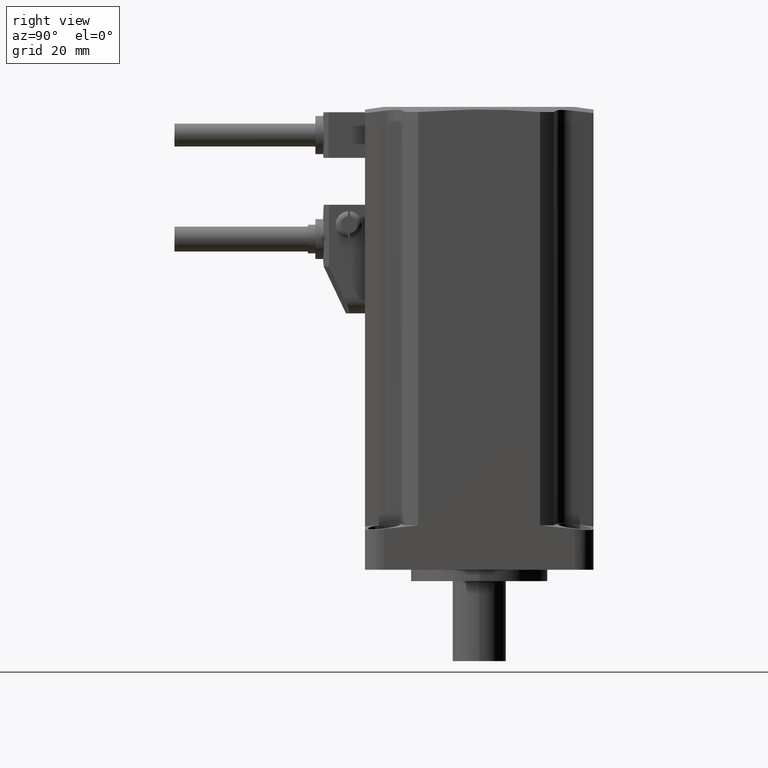
[diagram: clean part render]
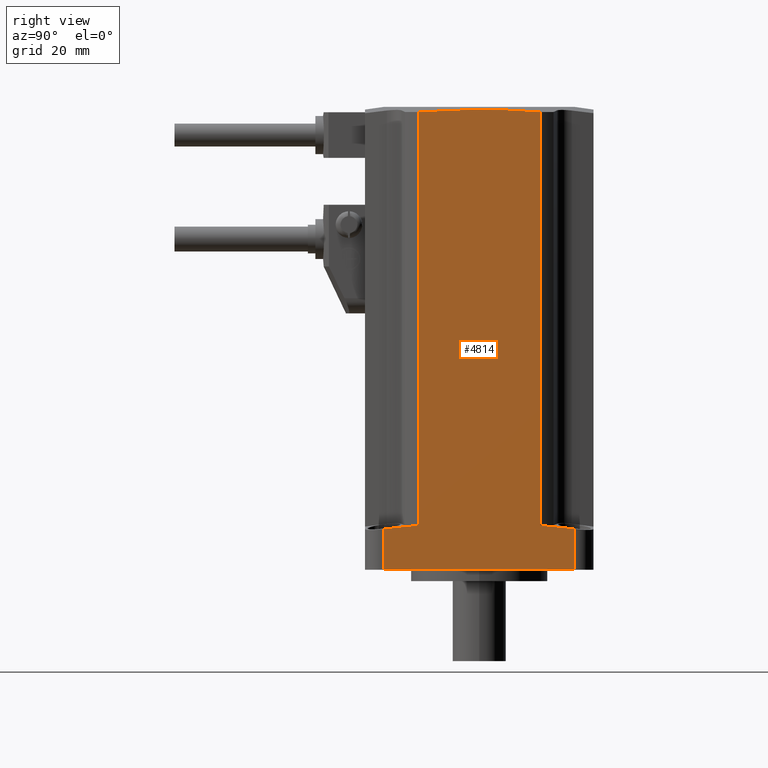
[diagram: same view with one face highlighted and labeled with its STEP entity id]
A machine part, right view. The second image highlights one B-rep face of the part: STEP entity #4814.
In plain terms, the highlighted planar face has unit normal (-1, 0, 0).
Its self-contained STEP definition (entity closure, byte-faithful):
#61 = CARTESIAN_POINT ( 'NONE',  ( 30.00000000000002132, -9.627715291671279374E-12, 121.0212689324768291 ) ) ;
#79 = DIRECTION ( 'NONE',  ( -0.0000000000000000000, 1.000000000000000000, 0.0000000000000000000 ) ) ;
#156 = EDGE_CURVE ( 'NONE', #2340, #4882, #4006, .T. ) ;
#379 = CARTESIAN_POINT ( 'NONE',  ( 30.00000000000000000, -16.00000000006212986, 120.1574641380377955 ) ) ;
#395 = ORIENTED_EDGE ( 'NONE', *, *, #156, .F. ) ;
#574 = CARTESIAN_POINT ( 'NONE',  ( 30.00000000000000000, 16.00000000000001421, 120.1574641380378097 ) ) ;
#653 = EDGE_CURVE ( 'NONE', #3724, #1781, #1730, .T. ) ;
#669 = DIRECTION ( 'NONE',  ( -0.0000000000000000000, -0.0000000000000000000, -1.000000000000000000 ) ) ;
#702 = CARTESIAN_POINT ( 'NONE',  ( 30.00000000000000000, -16.00000000006212986, 11.64060961089259649 ) ) ;
#896 = CARTESIAN_POINT ( 'NONE',  ( 30.00000000000000000, -16.00000000006212986, 11.64060961089259649 ) ) ;
#1005 = CARTESIAN_POINT ( 'NONE',  ( 30.00000000000000000, -25.00000000000000000, 12.99799999999999578 ) ) ;
#1075 = ORIENTED_EDGE ( 'NONE', *, *, #2011, .F. ) ;
#1101 = DIRECTION ( 'NONE',  ( 0.0000000000000000000, 0.0000000000000000000, -1.000000000000000000 ) ) ;
#1129 = LINE ( 'NONE', #1527, #3432 ) ;
#1224 = B_SPLINE_CURVE_WITH_KNOTS ( 'NONE', 3,
 ( #3399, #4156, #3066, #702 ),
 .UNSPECIFIED., .F., .F.,
 ( 4, 4 ),
 ( 0.0000000000000000000, 0.009048785526441073188 ),
 .UNSPECIFIED. ) ;
#1272 = VERTEX_POINT ( 'NONE', #574 ) ;
#1379 = LINE ( 'NONE', #2965, #2546 ) ;
#1478 = CARTESIAN_POINT ( 'NONE',  ( 30.00000000000000000, 22.00715869517009438, 11.08369676035045259 ) ) ;
#1503 = VECTOR ( 'NONE', #79, 1000.000000000000000 ) ;
#1527 = CARTESIAN_POINT ( 'NONE',  ( 30.00000000000000355, 25.00000000000000000, 13.00000000000000178 ) ) ;
#1606 = CARTESIAN_POINT ( 'NONE',  ( 29.99999999999998579, -25.00000000000002132, 10.70224960232975420 ) ) ;
#1662 = CARTESIAN_POINT ( 'NONE',  ( 30.00000000000000000, 16.00000000000000711, 12.99799999999999578 ) ) ;
#1663 = CARTESIAN_POINT ( 'NONE',  ( 30.00000000000000000, 25.00000000000000000, 0.0000000000000000000 ) ) ;
#1705 = CARTESIAN_POINT ( 'NONE',  ( 30.00000000000000000, -10.66666666668269770, 120.5904330735378522 ) ) ;
#1730 = LINE ( 'NONE', #3556, #1503 ) ;
#1781 = VERTEX_POINT ( 'NONE', #1663 ) ;
#1844 = CARTESIAN_POINT ( 'NONE',  ( 30.00000000000000000, -16.00000000012426327, 12.99799999999999578 ) ) ;
#1931 = CARTESIAN_POINT ( 'NONE',  ( 30.00000000000000000, -25.00000000000000000, 0.0000000000000000000 ) ) ;
#2011 = EDGE_CURVE ( 'NONE', #2112, #3719, #4690, .T. ) ;
#2112 = VERTEX_POINT ( 'NONE', #896 ) ;
#2155 = CARTESIAN_POINT ( 'NONE',  ( 29.99999999999999645, 16.00000000000214584, 11.64060961095267999 ) ) ;
#2213 = VECTOR ( 'NONE', #4667, 1000.000000000000000 ) ;
#2317 = EDGE_CURVE ( 'NONE', #1272, #2340, #1379, .T. ) ;
#2340 = VERTEX_POINT ( 'NONE', #2155 ) ;
#2472 = VERTEX_POINT ( 'NONE', #1606 ) ;
#2546 = VECTOR ( 'NONE', #669, 1000.000000000000000 ) ;
#2594 = LINE ( 'NONE', #1005, #2633 ) ;
#2633 = VECTOR ( 'NONE', #4090, 1000.000000000000000 ) ;
#2832 = EDGE_CURVE ( 'NONE', #3719, #1272, #4603, .T. ) ;
#2833 = ORIENTED_EDGE ( 'NONE', *, *, #2832, .F. ) ;
#2965 = CARTESIAN_POINT ( 'NONE',  ( 30.00000000000000000, 16.00000000000000711, 12.99799999999999578 ) ) ;
#3016 = EDGE_CURVE ( 'NONE', #3724, #2472, #2594, .T. ) ;
#3023 = CARTESIAN_POINT ( 'NONE',  ( 30.00000000000000000, 25.00000000000000355, 10.70224960240231304 ) ) ;
#3066 = CARTESIAN_POINT ( 'NONE',  ( 29.99999999999999289, -19.00715869524762169, 11.39648342980439466 ) ) ;
#3129 = ORIENTED_EDGE ( 'NONE', *, *, #2317, .F. ) ;
#3152 = CARTESIAN_POINT ( 'NONE',  ( 30.00000000000000711, 10.66666666666346330, 120.5904330735389181 ) ) ;
#3200 = DIRECTION ( 'NONE',  ( -1.000000000000000000, 0.0000000000000000000, 0.0000000000000000000 ) ) ;
#3202 = ORIENTED_EDGE ( 'NONE', *, *, #3016, .F. ) ;
#3399 = CARTESIAN_POINT ( 'NONE',  ( 29.99999999999998579, -25.00000000000002132, 10.70224960232975420 ) ) ;
#3432 = VECTOR ( 'NONE', #1101, 1000.000000000000000 ) ;
#3556 = CARTESIAN_POINT ( 'NONE',  ( 30.00000000000000000, 0.0000000000000000000, 0.0000000000000000000 ) ) ;
#3568 = ORIENTED_EDGE ( 'NONE', *, *, #3958, .F. ) ;
#3627 = CARTESIAN_POINT ( 'NONE',  ( 30.00000000000000000, -16.00000000006212986, 120.1574641380377955 ) ) ;
#3719 = VERTEX_POINT ( 'NONE', #379 ) ;
#3724 = VERTEX_POINT ( 'NONE', #1931 ) ;
#3731 = EDGE_CURVE ( 'NONE', #4882, #1781, #1129, .T. ) ;
#3769 = CARTESIAN_POINT ( 'NONE',  ( 29.99999999999999289, 19.00715869517011214, 11.39648342986740026 ) ) ;
#3772 = AXIS2_PLACEMENT_3D ( 'NONE', #1662, #3200, #4749 ) ;
#3837 = ORIENTED_EDGE ( 'NONE', *, *, #3731, .F. ) ;
#3864 = EDGE_LOOP ( 'NONE', ( #3568, #3202, #4558, #3837, #395, #3129, #2833, #1075 ) ) ;
#3958 = EDGE_CURVE ( 'NONE', #2472, #2112, #1224, .T. ) ;
#3981 = FACE_OUTER_BOUND ( 'NONE', #3864, .T. ) ;
#4006 = B_SPLINE_CURVE_WITH_KNOTS ( 'NONE', 3,
 ( #4948, #3769, #1478, #4149 ),
 .UNSPECIFIED., .F., .F.,
 ( 4, 4 ),
 ( 2.127798691319190618E-15, 0.009048785526553804193 ),
 .UNSPECIFIED. ) ;
#4090 = DIRECTION ( 'NONE',  ( 0.0000000000000000000, 0.0000000000000000000, 1.000000000000000000 ) ) ;
#4092 = PLANE ( 'NONE',  #3772 ) ;
#4149 = CARTESIAN_POINT ( 'NONE',  ( 30.00000000000000000, 25.00000000000000355, 10.70224960240231304 ) ) ;
#4156 = CARTESIAN_POINT ( 'NONE',  ( 29.99999999999998579, -22.00715869520782064, 11.08369676028191719 ) ) ;
#4558 = ORIENTED_EDGE ( 'NONE', *, *, #653, .T. ) ;
#4603 = B_SPLINE_CURVE_WITH_KNOTS ( 'NONE', 3,
 ( #3627, #1705, #61, #3152, #4698 ),
 .UNSPECIFIED., .F., .F.,
 ( 4, 1, 4 ),
 ( 0.0000000000000000000, 0.01600000000000961764, 0.03200000000001923528 ),
 .UNSPECIFIED. ) ;
#4667 = DIRECTION ( 'NONE',  ( 0.0000000000000000000, 0.0000000000000000000, 1.000000000000000000 ) ) ;
#4690 = LINE ( 'NONE', #1844, #2213 ) ;
#4698 = CARTESIAN_POINT ( 'NONE',  ( 30.00000000000000000, 16.00000000000001421, 120.1574641380378097 ) ) ;
#4749 = DIRECTION ( 'NONE',  ( 0.0000000000000000000, 0.0000000000000000000, 1.000000000000000000 ) ) ;
#4814 = ADVANCED_FACE ( 'NONE', ( #3981 ), #4092, .F. ) ;
#4882 = VERTEX_POINT ( 'NONE', #3023 ) ;
#4948 = CARTESIAN_POINT ( 'NONE',  ( 29.99999999999999645, 16.00000000000214584, 11.64060961095267999 ) ) ;